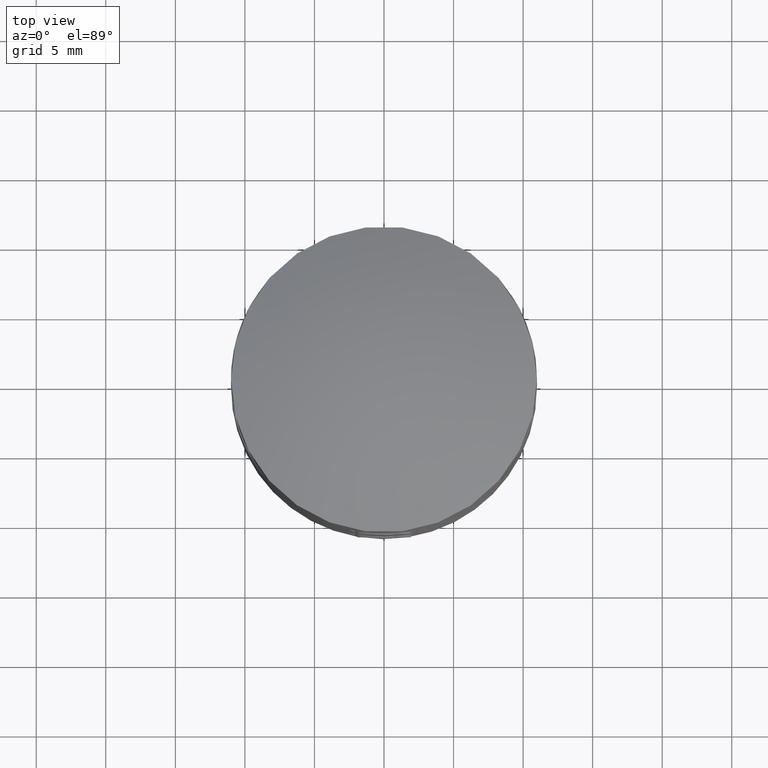
[diagram: clean part render]
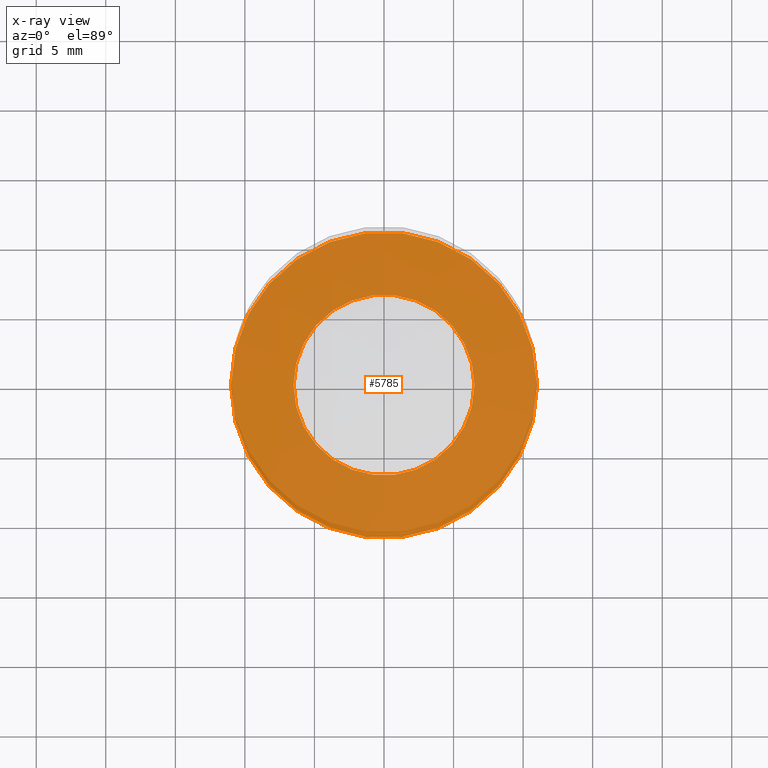
[diagram: x-ray — body ghosted, one internal face saturated and labeled with its STEP entity id]
A machine part, top view, then the same camera in x-ray: the body is ghosted and one INTERNAL B-rep face — a face not visible from any outside direction — is saturated and labeled: STEP entity #5785.
In plain terms, the highlighted planar face has unit normal (0, 0, 1).
Its self-contained STEP definition (entity closure, byte-faithful):
#535 = EDGE_CURVE ( 'NONE', #13278, #13278, #16862, .T. ) ;
#3465 = CARTESIAN_POINT ( 'NONE',  ( 11.00000000000000000, 0.0000000000000000000, 0.0000000000000000000 ) ) ;
#5089 = EDGE_LOOP ( 'NONE', ( #10721 ) ) ;
#5785 = ADVANCED_FACE ( 'NONE', ( #16892, #19721 ), #8890, .F. ) ;
#5987 = CIRCLE ( 'NONE', #21282, 11.00000000000000000 ) ;
#7120 = DIRECTION ( 'NONE',  ( 0.0000000000000000000, -0.0000000000000000000, 1.000000000000000000 ) ) ;
#7798 = ORIENTED_EDGE ( 'NONE', *, *, #8670, .F. ) ;
#8623 = CARTESIAN_POINT ( 'NONE',  ( 0.0000000000000000000, 0.0000000000000000000, 0.0000000000000000000 ) ) ;
#8670 = EDGE_CURVE ( 'NONE', #9692, #9692, #5987, .T. ) ;
#8785 = CARTESIAN_POINT ( 'NONE',  ( 6.500000000000016900, 0.0000000000000000000, 0.0000000000000000000 ) ) ;
#8890 = PLANE ( 'NONE',  #17738 ) ;
#9692 = VERTEX_POINT ( 'NONE', #3465 ) ;
#10721 = ORIENTED_EDGE ( 'NONE', *, *, #535, .T. ) ;
#10790 = AXIS2_PLACEMENT_3D ( 'NONE', #8623, #15711, #17481 ) ;
#13278 = VERTEX_POINT ( 'NONE', #8785 ) ;
#15282 = EDGE_LOOP ( 'NONE', ( #7798 ) ) ;
#15417 = DIRECTION ( 'NONE',  ( 1.000000000000000000, 0.0000000000000000000, 0.0000000000000000000 ) ) ;
#15711 = DIRECTION ( 'NONE',  ( -0.0000000000000000000, -0.0000000000000000000, 1.000000000000000000 ) ) ;
#16862 = CIRCLE ( 'NONE', #10790, 6.500000000000016900 ) ;
#16892 = FACE_BOUND ( 'NONE', #5089, .T. ) ;
#17033 = CARTESIAN_POINT ( 'NONE',  ( 0.0000000000000000000, 0.0000000000000000000, 0.0000000000000000000 ) ) ;
#17481 = DIRECTION ( 'NONE',  ( 1.000000000000000000, 0.0000000000000000000, 0.0000000000000000000 ) ) ;
#17738 = AXIS2_PLACEMENT_3D ( 'NONE', #19318, #7120, #22782 ) ;
#19318 = CARTESIAN_POINT ( 'NONE',  ( 0.0000000000000000000, 0.0000000000000000000, 0.0000000000000000000 ) ) ;
#19721 = FACE_OUTER_BOUND ( 'NONE', #15282, .T. ) ;
#21282 = AXIS2_PLACEMENT_3D ( 'NONE', #17033, #22472, #15417 ) ;
#22472 = DIRECTION ( 'NONE',  ( -0.0000000000000000000, -0.0000000000000000000, 1.000000000000000000 ) ) ;
#22782 = DIRECTION ( 'NONE',  ( 1.000000000000000000, 0.0000000000000000000, 0.0000000000000000000 ) ) ;